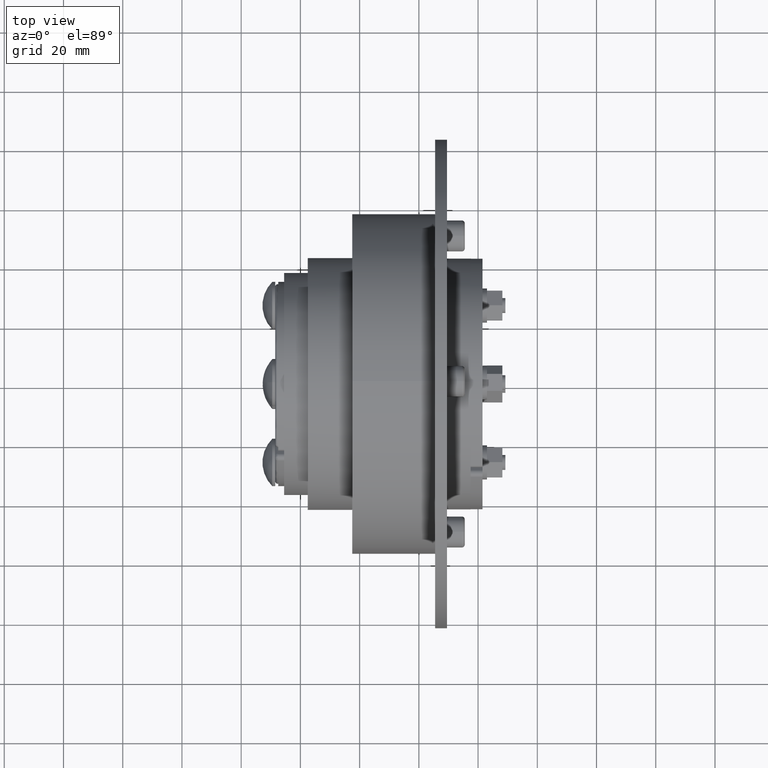
[diagram: clean part render]
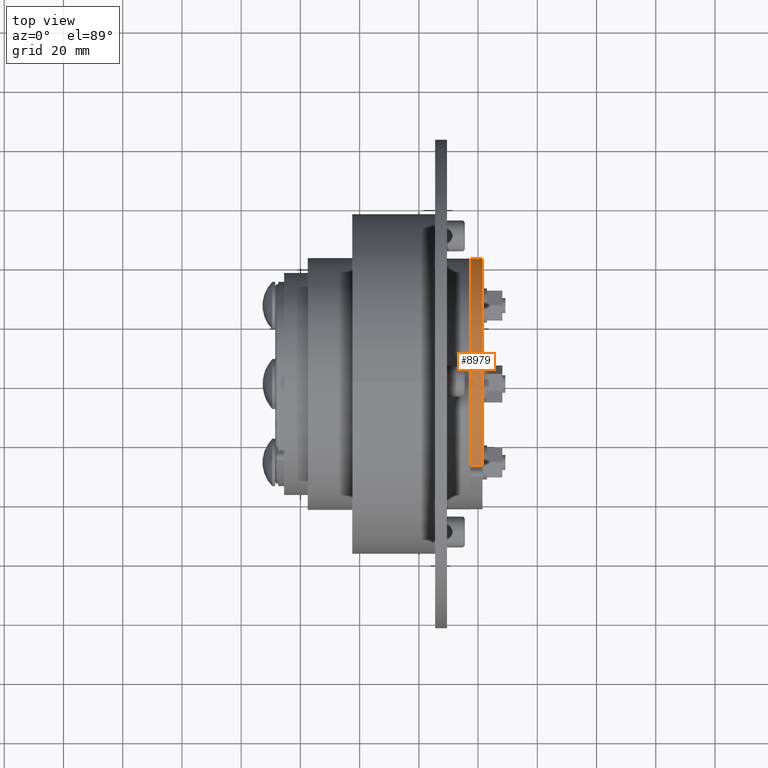
[diagram: same view with one face highlighted and labeled with its STEP entity id]
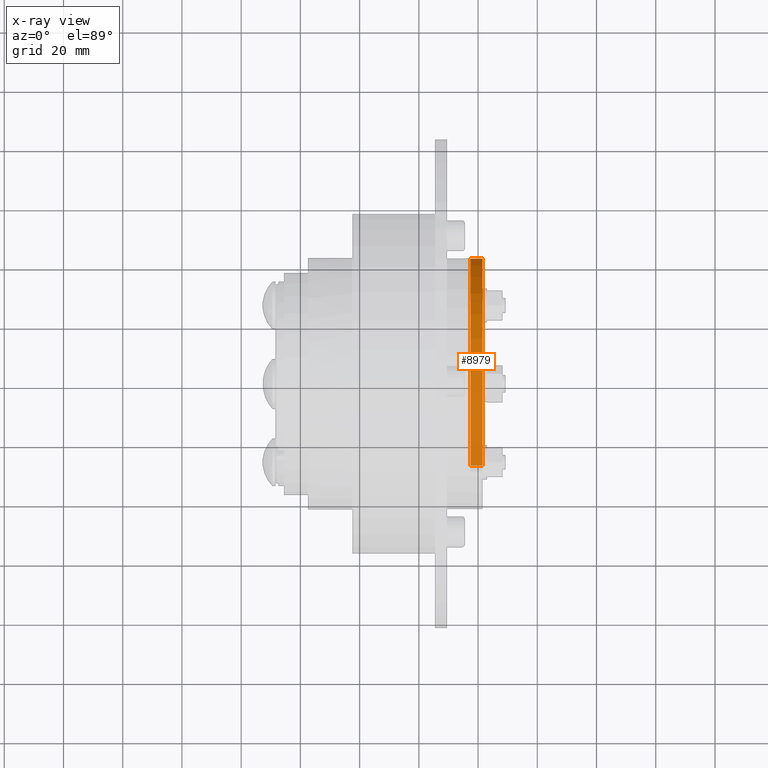
[diagram: x-ray of the same camera — body ghosted, the highlighted face saturated]
A machine part, top view. The second image highlights one B-rep face of the part: STEP entity #8979.
The next image is the same camera in x-ray: the body ghosted, the highlighted face saturated — about 0% of this face is hidden behind the body in this view.
In plain terms, the highlighted cylindrical surface (partial cylindrical patch) has radius 42.5 mm, axis along (1, 0, -0).
Its self-contained STEP definition (entity closure, byte-faithful):
#1678=CARTESIAN_POINT('',(0.0,31.828560414078211,-28.163677706708910));
#1679=VERTEX_POINT('',#1678);
#1687=CARTESIAN_POINT('',(4.0,31.828560414078211,-28.163677706708910));
#1688=VERTEX_POINT('',#1687);
#1689=CARTESIAN_POINT('',(0.0,31.828560414078211,-28.163677706708910));
#1690=DIRECTION('',(1.0,0.0,0.0));
#1691=VECTOR('',#1690,4.0);
#1692=LINE('',#1689,#1691);
#1693=EDGE_CURVE('',#1679,#1688,#1692,.T.);
#8947=CARTESIAN_POINT('',(0.0,0.0,0.0));
#8948=DIRECTION('',(1.0,0.0,0.0));
#8949=DIRECTION('',(0.0,0.723548821801944,-0.690273208569635));
#8950=AXIS2_PLACEMENT_3D('',#8947,#8948,#8949);
#8951=CYLINDRICAL_SURFACE('',#8950,42.499999999999993);
#8952=ORIENTED_EDGE('',*,*,#1693,.F.);
#8953=CARTESIAN_POINT('',(0.0,-28.163677706708931,31.828560414078201));
#8954=VERTEX_POINT('',#8953);
#8955=CARTESIAN_POINT('',(0.0,0.0,0.0));
#8956=DIRECTION('',(1.0,0.0,0.0));
#8957=DIRECTION('',(0.0,0.723548821801944,-0.690273208569635));
#8958=AXIS2_PLACEMENT_3D('',#8955,#8956,#8957);
#8959=CIRCLE('',#8958,42.499999999999993);
#8960=EDGE_CURVE('',#1679,#8954,#8959,.T.);
#8961=ORIENTED_EDGE('',*,*,#8960,.T.);
#8962=CARTESIAN_POINT('',(4.0,-28.163677706708931,31.828560414078201));
#8963=VERTEX_POINT('',#8962);
#8964=CARTESIAN_POINT('',(4.0,-28.163677706708931,31.828560414078201));
#8965=DIRECTION('',(-1.0,0.0,0.0));
#8966=VECTOR('',#8965,4.0);
#8967=LINE('',#8964,#8966);
#8968=EDGE_CURVE('',#8963,#8954,#8967,.T.);
#8969=ORIENTED_EDGE('',*,*,#8968,.F.);
#8970=CARTESIAN_POINT('',(4.0,0.0,0.0));
#8971=DIRECTION('',(-1.0,0.0,0.0));
#8972=DIRECTION('',(0.0,0.723548821801944,-0.690273208569635));
#8973=AXIS2_PLACEMENT_3D('',#8970,#8971,#8972);
#8974=CIRCLE('',#8973,42.499999999999993);
#8975=EDGE_CURVE('',#8963,#1688,#8974,.T.);
#8976=ORIENTED_EDGE('',*,*,#8975,.T.);
#8977=EDGE_LOOP('',(#8952,#8961,#8969,#8976));
#8978=FACE_OUTER_BOUND('',#8977,.T.);
#8979=ADVANCED_FACE('',(#8978),#8951,.T.);